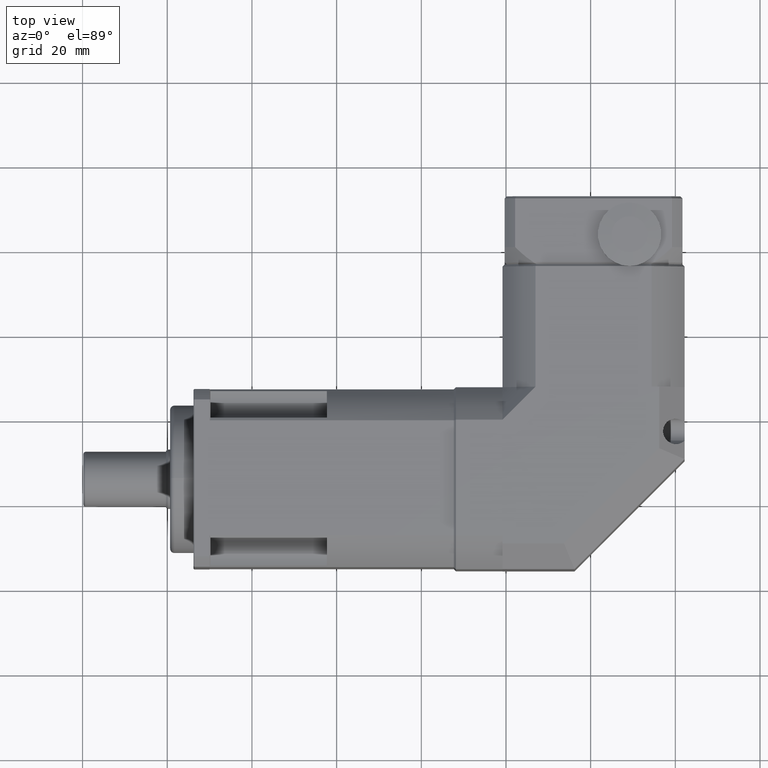
[diagram: clean part render]
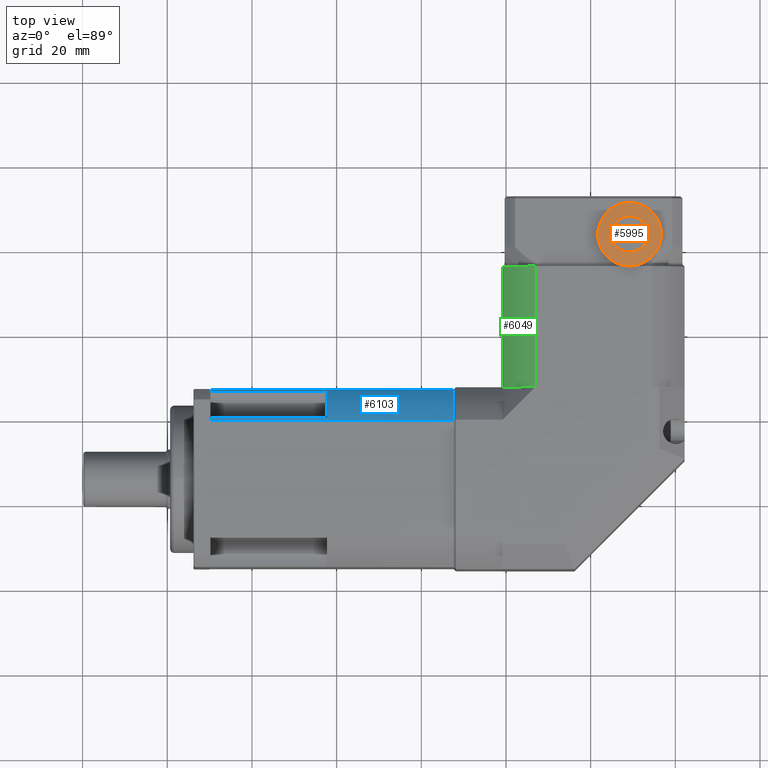
[diagram: same view with three faces highlighted in distinct colors, each labeled with its STEP entity id]
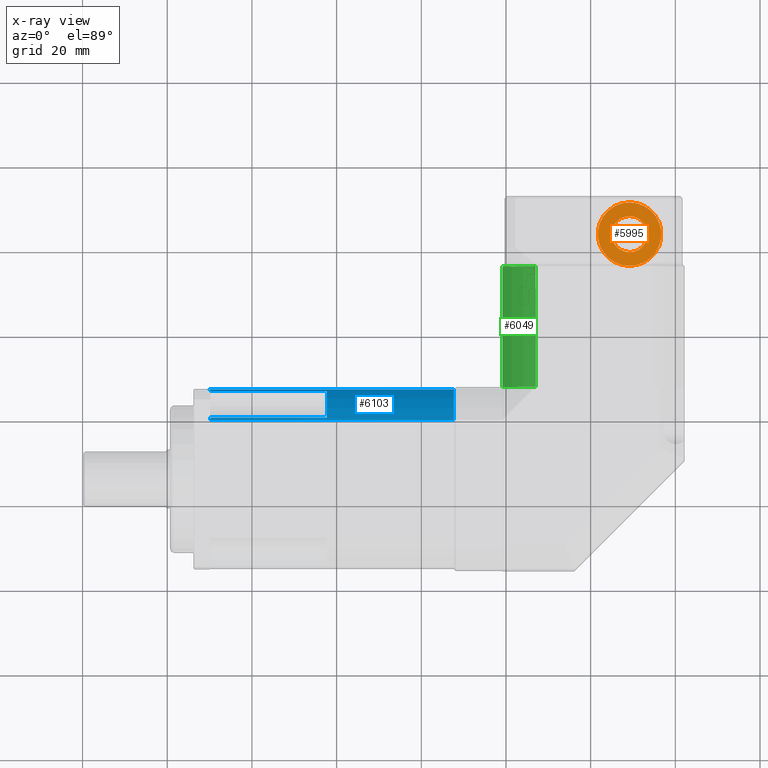
[diagram: x-ray of the same camera — body ghosted, the three highlighted faces saturated]
A machine part, top view with three faces highlighted in distinct colors.
The next image is the same camera in x-ray (body ghosted, the three faces saturated) — at least one of them is partly hidden behind the body in this view.
Their STEP definitions:

[orange] entity #5995 — the highlighted conical surface has half-angle 84.726 deg.
#853=CONICAL_SURFACE('',#6545,5.875,84.7261040426483);
#974=FACE_BOUND('',#1823,.T.);
#1336=FACE_OUTER_BOUND('',#1822,.T.);
#1822=EDGE_LOOP('',(#4343));
#1823=EDGE_LOOP('',(#4344));
#2292=CIRCLE('',#6542,7.5);
#2293=CIRCLE('',#6544,4.25);
#2697=VERTEX_POINT('',#9591);
#2698=VERTEX_POINT('',#9594);
#3311=EDGE_CURVE('',#2697,#2697,#2292,.T.);
#3312=EDGE_CURVE('',#2698,#2698,#2293,.T.);
#4343=ORIENTED_EDGE('',*,*,#3312,.T.);
#4344=ORIENTED_EDGE('',*,*,#3311,.F.);
#5995=ADVANCED_FACE('',(#1336,#974),#853,.T.);
#6542=AXIS2_PLACEMENT_3D('',#9592,#7658,#7659);
#6544=AXIS2_PLACEMENT_3D('',#9595,#7662,#7663);
#6545=AXIS2_PLACEMENT_3D('',#9596,#7664,#7665);
#7658=DIRECTION('center_axis',(1.03559198887465E-13,2.30086309546018E-15,
-1.));
#7659=DIRECTION('ref_axis',(-1.,-2.47836968369941E-15,-1.03559198887465E-13));
#7662=DIRECTION('center_axis',(1.03559198887465E-13,2.30086309546018E-15,
-1.));
#7663=DIRECTION('ref_axis',(-1.,-2.47836968369941E-15,-1.03559198887465E-13));
#7664=DIRECTION('center_axis',(1.03559198887465E-13,2.30086309546018E-15,
-1.));
#7665=DIRECTION('ref_axis',(-2.47836968369965E-15,1.,2.30593489484515E-15));
#9591=CARTESIAN_POINT('',(69.1917864952712,71.0526784650897,17.6286399548535));
#9592=CARTESIAN_POINT('Origin',(69.1917864952712,63.5526784650897,17.6286399548535));
#9594=CARTESIAN_POINT('',(69.1917864952711,67.8026784650897,17.9286399548535));
#9595=CARTESIAN_POINT('Origin',(69.1917864952712,63.5526784650897,17.9286399548535));
#9596=CARTESIAN_POINT('Origin',(69.1917864952712,63.5526784650897,17.7786399548535));

[blue] entity #6103 — the highlighted cylindrical surface (partial cylindrical patch) has radius 25 mm, axis along (-1, -0, 0).
#28=ELLIPSE('',#6708,35.3553390593274,25.);
#29=ELLIPSE('',#6713,35.3553390593274,25.);
#358=LINE('',#10198,#669);
#364=LINE('',#10220,#675);
#365=LINE('',#10221,#676);
#370=LINE('',#10229,#681);
#669=VECTOR('',#8144,57.7);
#675=VECTOR('',#8174,27.5);
#676=VECTOR('',#8175,27.5);
#681=VECTOR('',#8186,57.7);
#1139=CYLINDRICAL_SURFACE('',#6751,25.);
#1444=FACE_OUTER_BOUND('',#1967,.T.);
#1967=EDGE_LOOP('',(#4789,#4790,#4791,#4792,#4793,#4794,#4795,#4796,#4797,
#4798));
#2317=CIRCLE('',#6597,25.);
#2338=CIRCLE('',#6656,25.);
#2366=CIRCLE('',#6715,25.);
#2368=CIRCLE('',#6717,25.);
#2741=VERTEX_POINT('',#9740);
#2746=VERTEX_POINT('',#9760);
#2784=VERTEX_POINT('',#9956);
#2785=VERTEX_POINT('',#9957);
#2827=VERTEX_POINT('',#10088);
#2828=VERTEX_POINT('',#10090);
#2832=VERTEX_POINT('',#10108);
#2833=VERTEX_POINT('',#10110);
#2834=VERTEX_POINT('',#10114);
#2835=VERTEX_POINT('',#10116);
#3390=EDGE_CURVE('',#2746,#2741,#2317,.T.);
#3446=EDGE_CURVE('',#2785,#2784,#2338,.T.);
#3497=EDGE_CURVE('',#2827,#2828,#28,.F.);
#3504=EDGE_CURVE('',#2832,#2833,#29,.F.);
#3506=EDGE_CURVE('',#2834,#2833,#2366,.T.);
#3508=EDGE_CURVE('',#2827,#2835,#2368,.T.);
#3537=EDGE_CURVE('',#2741,#2832,#358,.T.);
#3547=EDGE_CURVE('',#2785,#2834,#364,.T.);
#3548=EDGE_CURVE('',#2835,#2784,#365,.T.);
#3553=EDGE_CURVE('',#2828,#2746,#370,.T.);
#4789=ORIENTED_EDGE('',*,*,#3548,.T.);
#4790=ORIENTED_EDGE('',*,*,#3446,.F.);
#4791=ORIENTED_EDGE('',*,*,#3547,.T.);
#4792=ORIENTED_EDGE('',*,*,#3506,.T.);
#4793=ORIENTED_EDGE('',*,*,#3504,.F.);
#4794=ORIENTED_EDGE('',*,*,#3537,.F.);
#4795=ORIENTED_EDGE('',*,*,#3390,.F.);
#4796=ORIENTED_EDGE('',*,*,#3553,.F.);
#4797=ORIENTED_EDGE('',*,*,#3497,.F.);
#4798=ORIENTED_EDGE('',*,*,#3508,.T.);
#6103=ADVANCED_FACE('',(#1444),#1139,.T.);
#6597=AXIS2_PLACEMENT_3D('',#9806,#7806,#7807);
#6656=AXIS2_PLACEMENT_3D('',#9959,#7955,#7956);
#6708=AXIS2_PLACEMENT_3D('',#10091,#8072,#8073);
#6713=AXIS2_PLACEMENT_3D('',#10111,#8084,#8085);
#6715=AXIS2_PLACEMENT_3D('',#10115,#8089,#8090);
#6717=AXIS2_PLACEMENT_3D('',#10118,#8093,#8094);
#6751=AXIS2_PLACEMENT_3D('',#10228,#8184,#8185);
#7806=DIRECTION('center_axis',(1.,-1.01733569921149E-16,2.46113125889832E-16));
#7807=DIRECTION('ref_axis',(-2.46113125889832E-16,-1.47683655010147E-15,
1.));
#7955=DIRECTION('center_axis',(-1.,1.01733569921149E-16,-2.46113125889832E-16));
#7956=DIRECTION('ref_axis',(-2.46113125889832E-16,-1.47683655010147E-15,
1.));
#8072=DIRECTION('center_axis',(0.707106781186547,0.707106781186548,1.50143283687802E-15));
#8073=DIRECTION('ref_axis',(-0.707106781186548,0.707106781186547,1.23004906957398E-15));
#8084=DIRECTION('center_axis',(0.707106781186548,-9.76680028365199E-16,
0.707106781186548));
#8085=DIRECTION('ref_axis',(-0.707106781186547,-1.45573664786132E-15,0.707106781186547));
#8089=DIRECTION('center_axis',(1.,3.3874418421801E-16,-1.95737501449167E-17));
#8090=DIRECTION('ref_axis',(1.95737501449173E-17,-1.71997832643101E-15,
1.));
#8093=DIRECTION('center_axis',(1.,3.3874418421801E-16,-1.95737501449167E-17));
#8094=DIRECTION('ref_axis',(1.95737501449173E-17,-1.71997832643101E-15,
1.));
#8144=DIRECTION('',(-1.,-3.3874418421801E-16,1.95737501449167E-17));
#8174=DIRECTION('',(-1.,-3.3874418421801E-16,1.95737501449167E-17));
#8175=DIRECTION('',(1.,3.3874418421801E-16,-1.95737501449167E-17));
#8184=DIRECTION('center_axis',(-1.,-3.3874418421801E-16,1.95737501449167E-17));
#8185=DIRECTION('ref_axis',(1.95737501449173E-17,-1.71997832643101E-15,
1.));
#8186=DIRECTION('',(1.,3.3874418421801E-16,-1.95737501449167E-17));
#9740=CARTESIAN_POINT('',(27.6917864952593,19.6173384313411,16.4286399548234));
#9760=CARTESIAN_POINT('',(27.6917864952593,27.0526784650905,8.99329992107398));
#9806=CARTESIAN_POINT('Origin',(27.6917864952593,6.05267846509057,-4.5713600451766));
#9956=CARTESIAN_POINT('',(-2.3082135047404,26.6289900550223,9.6277737789002));
#9957=CARTESIAN_POINT('',(-2.30821350474039,20.2518122891673,16.0049515447552));
#9959=CARTESIAN_POINT('Origin',(-2.30821350474069,6.05267846509057,-4.57136004517661));
#10088=CARTESIAN_POINT('',(-29.8082135047404,26.8526784650905,9.2980307128921));
#10090=CARTESIAN_POINT('',(-30.0082135047404,27.0526784650905,8.99329992107399));
#10091=CARTESIAN_POINT('Origin',(-9.00821350474039,6.05267846509055,-4.5713600451766));
#10108=CARTESIAN_POINT('',(-30.0082135047404,19.617338431341,16.4286399548234));
#10110=CARTESIAN_POINT('',(-29.8082135047404,19.9220692231592,16.2286399548234));
#10111=CARTESIAN_POINT('Origin',(-9.00821350474038,6.05267846509055,-4.5713600451766));
#10114=CARTESIAN_POINT('',(-29.8082135047404,20.2518122891673,16.0049515447552));
#10115=CARTESIAN_POINT('Origin',(-29.8082135047404,6.05267846509055,-4.5713600451766));
#10116=CARTESIAN_POINT('',(-29.8082135047404,26.6289900550223,9.6277737789002));
#10118=CARTESIAN_POINT('Origin',(-29.8082135047404,6.05267846509055,-4.5713600451766));
#10198=CARTESIAN_POINT('',(-2.30821350474039,19.6173384313411,16.4286399548234));
#10220=CARTESIAN_POINT('',(-2.30821350474039,20.2518122891673,16.0049515447552));
#10221=CARTESIAN_POINT('',(-2.3082135047404,26.6289900550223,9.6277737789002));
#10228=CARTESIAN_POINT('Origin',(-2.30821350474039,6.05267846509056,-4.5713600451766));
#10229=CARTESIAN_POINT('',(-2.3082135047404,27.0526784650905,8.99329992107399));

[green] entity #6049 — the highlighted cylindrical surface (partial cylindrical patch) has radius 25.5 mm, axis along (-0, -1, -0).
#283=LINE('',#9721,#594);
#326=LINE('',#9929,#637);
#594=VECTOR('',#7761,28.5);
#637=VECTOR('',#7916,28.5);
#1124=CYLINDRICAL_SURFACE('',#6638,25.5);
#1390=FACE_OUTER_BOUND('',#1891,.T.);
#1891=EDGE_LOOP('',(#4572,#4573,#4574,#4575));
#2303=CIRCLE('',#6565,25.5);
#2321=CIRCLE('',#6605,25.5);
#2713=VERTEX_POINT('',#9639);
#2714=VERTEX_POINT('',#9646);
#2732=VERTEX_POINT('',#9720);
#2768=VERTEX_POINT('',#9859);
#3332=EDGE_CURVE('',#2714,#2713,#2303,.T.);
#3359=EDGE_CURVE('',#2713,#2732,#283,.T.);
#3410=EDGE_CURVE('',#2768,#2732,#2321,.T.);
#3434=EDGE_CURVE('',#2768,#2714,#326,.T.);
#4572=ORIENTED_EDGE('',*,*,#3332,.F.);
#4573=ORIENTED_EDGE('',*,*,#3434,.F.);
#4574=ORIENTED_EDGE('',*,*,#3410,.T.);
#4575=ORIENTED_EDGE('',*,*,#3359,.F.);
#6049=ADVANCED_FACE('',(#1390),#1124,.T.);
#6565=AXIS2_PLACEMENT_3D('',#9651,#7711,#7712);
#6605=AXIS2_PLACEMENT_3D('',#9860,#7838,#7839);
#6638=AXIS2_PLACEMENT_3D('',#9928,#7914,#7915);
#7711=DIRECTION('center_axis',(6.85834299712159E-16,1.,1.88549463497119E-15));
#7712=DIRECTION('ref_axis',(-1.,6.8583429971216E-16,-2.26009384343242E-16));
#7761=DIRECTION('',(-6.85834299712159E-16,-1.,-1.88549463497119E-15));
#7838=DIRECTION('center_axis',(6.85834299712159E-16,1.,1.88549463497119E-15));
#7839=DIRECTION('ref_axis',(-1.,6.8583429971216E-16,-2.26009384343242E-16));
#7914=DIRECTION('center_axis',(-6.85834299712159E-16,-1.,-1.88549463497119E-15));
#7915=DIRECTION('ref_axis',(-1.,6.8583429971216E-16,-2.26009384343242E-16));
#7916=DIRECTION('',(6.85834299712159E-16,1.,1.88549463497119E-15));
#9639=CARTESIAN_POINT('',(46.9804772943805,56.0526784650905,16.9286399548235));
#9646=CARTESIAN_POINT('',(39.1917864952885,56.0526784650905,9.1399491557066));
#9651=CARTESIAN_POINT('Origin',(60.6917864952739,56.0526784650906,-4.57136004511831));
#9720=CARTESIAN_POINT('',(46.9804772943805,27.5526784650905,16.9286399548234));
#9721=CARTESIAN_POINT('',(46.9804772943805,56.5526784650905,16.9286399548235));
#9859=CARTESIAN_POINT('',(39.1917864952884,27.5526784650905,9.13994915562554));
#9860=CARTESIAN_POINT('Origin',(60.6917864952739,27.5526784650906,-4.57136004511836));
#9928=CARTESIAN_POINT('Origin',(60.6917864952739,56.5526784650906,-4.57136004511831));
#9929=CARTESIAN_POINT('',(39.1917864952885,56.5526784650905,9.13994915570661));